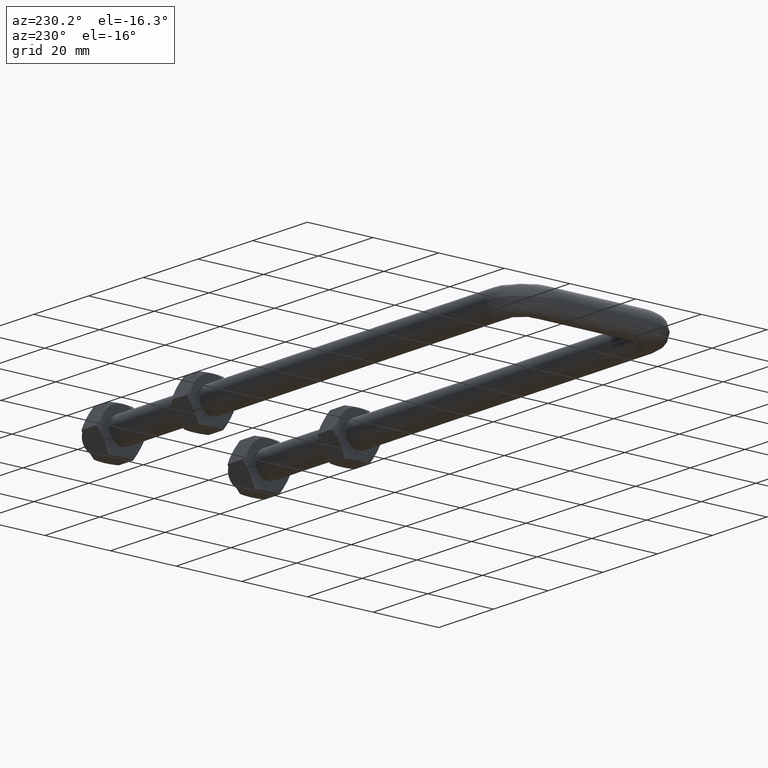
[diagram: clean part render]
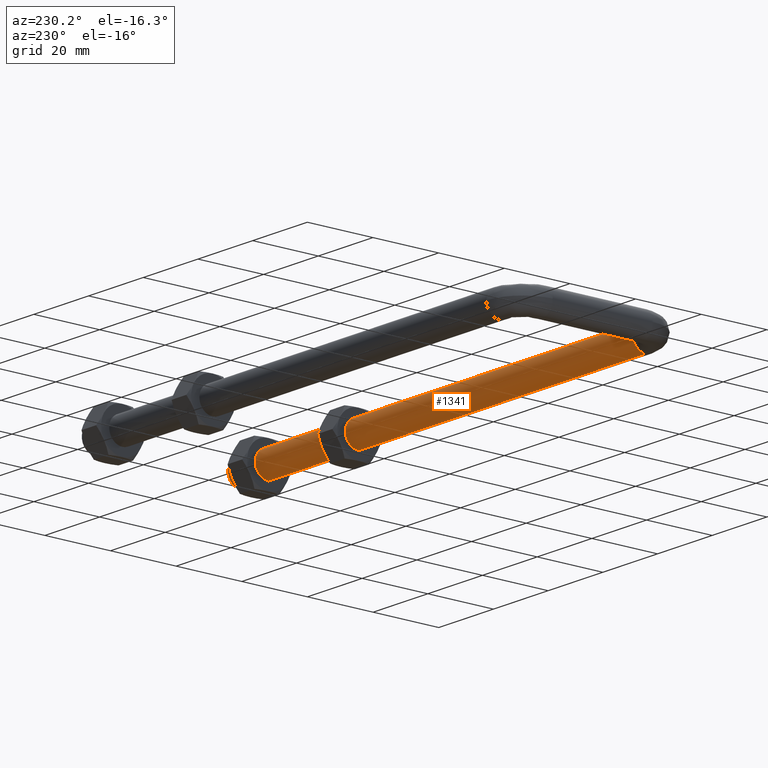
[diagram: same view with one face highlighted and labeled with its STEP entity id]
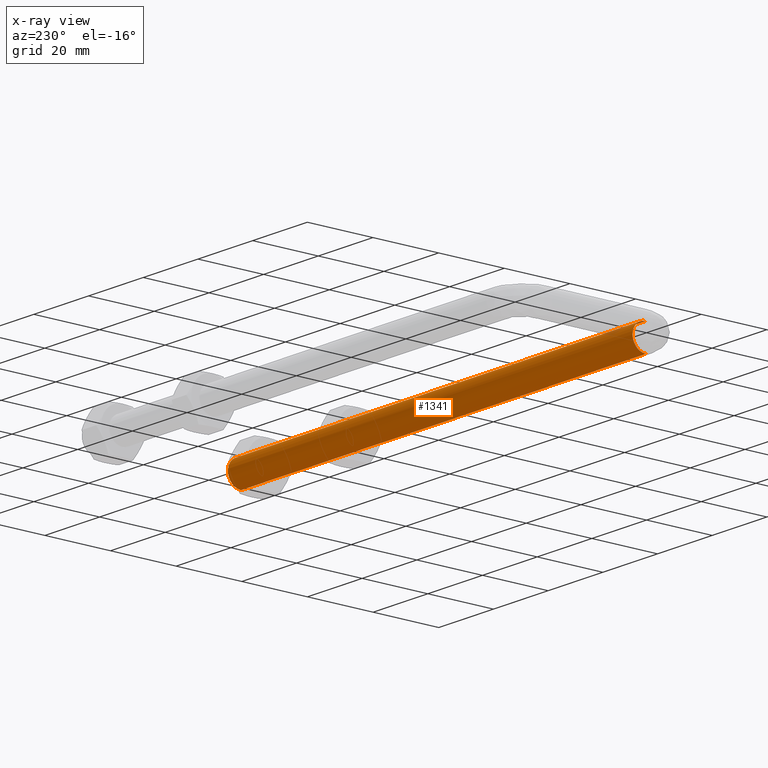
[diagram: x-ray of the same camera — body ghosted, the highlighted face saturated]
A machine part, auxiliary view. The second image highlights one B-rep face of the part: STEP entity #1341.
The next image is the same camera in x-ray: the body ghosted, the highlighted face saturated — about 0% of this face is hidden behind the body in this view.
In plain terms, the highlighted cylindrical surface (edge-blend (fillet) strip) has radius 4 mm, axis along (-1, -0, -0).
Its self-contained STEP definition (entity closure, byte-faithful):
#42 = DIRECTION ( 'NONE',  ( -1.000000000000000000, -0.0000000000000000000, -0.0000000000000000000 ) ) ;
#71 = ORIENTED_EDGE ( 'NONE', *, *, #370, .F. ) ;
#98 = CARTESIAN_POINT ( 'NONE',  ( 7.000000000000000000, -18.25000000002329900, 2.578235940851850100E-009 ) ) ;
#112 = DIRECTION ( 'NONE',  ( -1.000000000000000000, -0.0000000000000000000, -0.0000000000000000000 ) ) ;
#117 = VECTOR ( 'NONE', #1183, 1000.000000000000000 ) ;
#141 = AXIS2_PLACEMENT_3D ( 'NONE', #512, #1132, #405 ) ;
#197 = VERTEX_POINT ( 'NONE', #1094 ) ;
#318 = ORIENTED_EDGE ( 'NONE', *, *, #882, .T. ) ;
#333 = CARTESIAN_POINT ( 'NONE',  ( 155.0000000000019900, -22.24999999999998900, 4.000000000000000000 ) ) ;
#352 = EDGE_CURVE ( 'NONE', #1048, #998, #663, .T. ) ;
#353 = ORIENTED_EDGE ( 'NONE', *, *, #1455, .F. ) ;
#361 = CIRCLE ( 'NONE', #1207, 4.000000000000000000 ) ;
#370 = EDGE_CURVE ( 'NONE', #197, #768, #361, .T. ) ;
#381 = ORIENTED_EDGE ( 'NONE', *, *, #762, .F. ) ;
#405 = DIRECTION ( 'NONE',  ( 0.0000000000000000000, 1.000000000000000000, 0.0000000000000000000 ) ) ;
#412 = EDGE_LOOP ( 'NONE', ( #580, #318, #353, #71, #381 ) ) ;
#429 = CARTESIAN_POINT ( 'NONE',  ( 155.0000000000019900, -22.24999999999998900, 0.0000000000000000000 ) ) ;
#441 = CARTESIAN_POINT ( 'NONE',  ( 156.0000000000000000, -22.24999999999998900, -4.000000000000000000 ) ) ;
#476 = CARTESIAN_POINT ( 'NONE',  ( 155.0000000000019900, -22.24999999999998900, -4.000000000000000000 ) ) ;
#497 = FACE_OUTER_BOUND ( 'NONE', #412, .T. ) ;
#512 = CARTESIAN_POINT ( 'NONE',  ( 7.000000000000000000, -22.25000000000000000, 0.0000000000000000000 ) ) ;
#580 = ORIENTED_EDGE ( 'NONE', *, *, #352, .T. ) ;
#663 = CIRCLE ( 'NONE', #1126, 4.000000000000000000 ) ;
#678 = LINE ( 'NONE', #1089, #1336 ) ;
#697 = DIRECTION ( 'NONE',  ( -1.000000000000000000, 0.0000000000000000000, 0.0000000000000000000 ) ) ;
#762 = EDGE_CURVE ( 'NONE', #1048, #197, #678, .T. ) ;
#768 = VERTEX_POINT ( 'NONE', #98 ) ;
#781 = CYLINDRICAL_SURFACE ( 'NONE', #975, 4.000000000000000000 ) ;
#782 = LINE ( 'NONE', #441, #117 ) ;
#815 = CARTESIAN_POINT ( 'NONE',  ( 156.0000000000000000, -22.24999999999998900, 0.0000000000000000000 ) ) ;
#828 = DIRECTION ( 'NONE',  ( 0.0000000000000000000, 0.0000000000000000000, 1.000000000000000000 ) ) ;
#882 = EDGE_CURVE ( 'NONE', #998, #1138, #782, .T. ) ;
#930 = DIRECTION ( 'NONE',  ( 0.0000000000000000000, 0.0000000000000000000, -1.000000000000000000 ) ) ;
#954 = DIRECTION ( 'NONE',  ( 0.0000000000000000000, 1.000000000000000000, 0.0000000000000000000 ) ) ;
#975 = AXIS2_PLACEMENT_3D ( 'NONE', #815, #112, #828 ) ;
#998 = VERTEX_POINT ( 'NONE', #476 ) ;
#1033 = DIRECTION ( 'NONE',  ( -1.000000000000000000, -1.084202172485504300E-016, 0.0000000000000000000 ) ) ;
#1048 = VERTEX_POINT ( 'NONE', #333 ) ;
#1089 = CARTESIAN_POINT ( 'NONE',  ( 156.0000000000000000, -22.24999999999998900, 4.000000000000000000 ) ) ;
#1094 = CARTESIAN_POINT ( 'NONE',  ( 7.000000000000000000, -22.24999999999998900, 4.000000000000000000 ) ) ;
#1126 = AXIS2_PLACEMENT_3D ( 'NONE', #429, #697, #930 ) ;
#1132 = DIRECTION ( 'NONE',  ( -1.000000000000000000, -1.084202172485504300E-016, 0.0000000000000000000 ) ) ;
#1138 = VERTEX_POINT ( 'NONE', #1158 ) ;
#1158 = CARTESIAN_POINT ( 'NONE',  ( 7.000000000000000000, -22.24999999999998900, -4.000000000000000000 ) ) ;
#1178 = CIRCLE ( 'NONE', #141, 4.000000000000000000 ) ;
#1183 = DIRECTION ( 'NONE',  ( -1.000000000000000000, -0.0000000000000000000, -0.0000000000000000000 ) ) ;
#1207 = AXIS2_PLACEMENT_3D ( 'NONE', #1323, #1033, #954 ) ;
#1323 = CARTESIAN_POINT ( 'NONE',  ( 7.000000000000000000, -22.25000000000000000, 0.0000000000000000000 ) ) ;
#1336 = VECTOR ( 'NONE', #42, 1000.000000000000000 ) ;
#1341 = ADVANCED_FACE ( 'NONE', ( #497 ), #781, .T. ) ;
#1455 = EDGE_CURVE ( 'NONE', #768, #1138, #1178, .T. ) ;